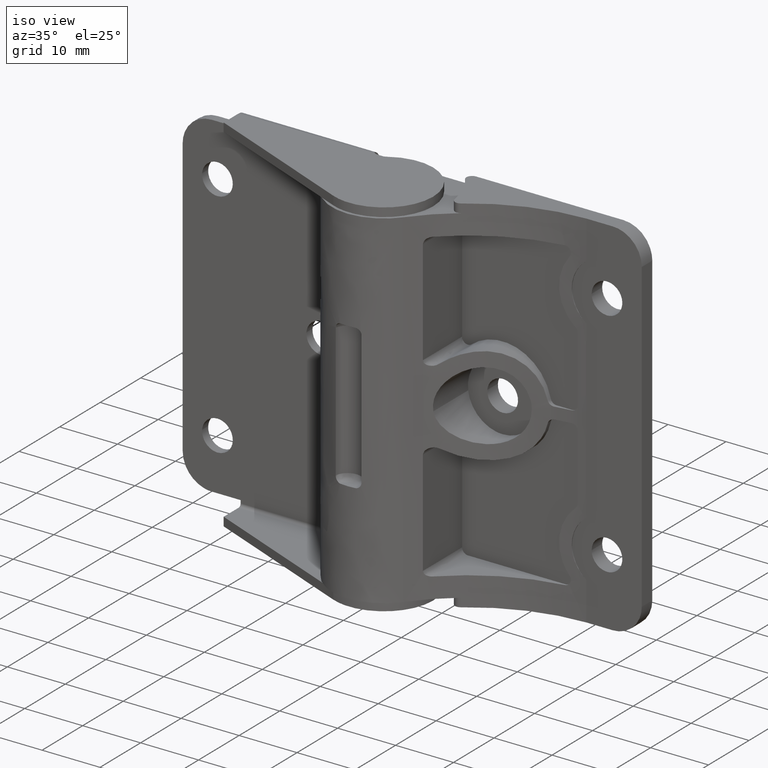
[diagram: clean part render]
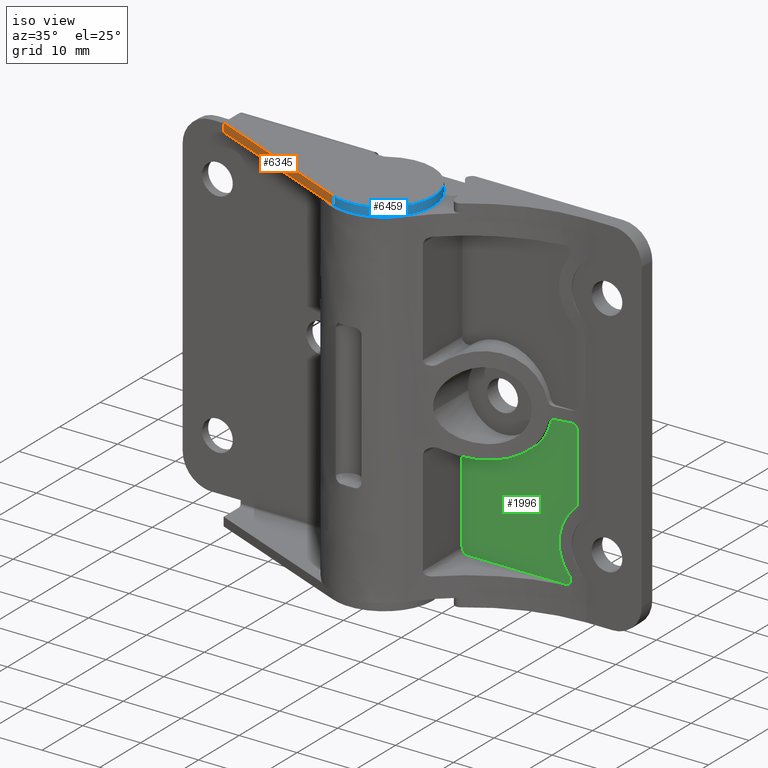
[diagram: same view with three faces highlighted in distinct colors, each labeled with its STEP entity id]
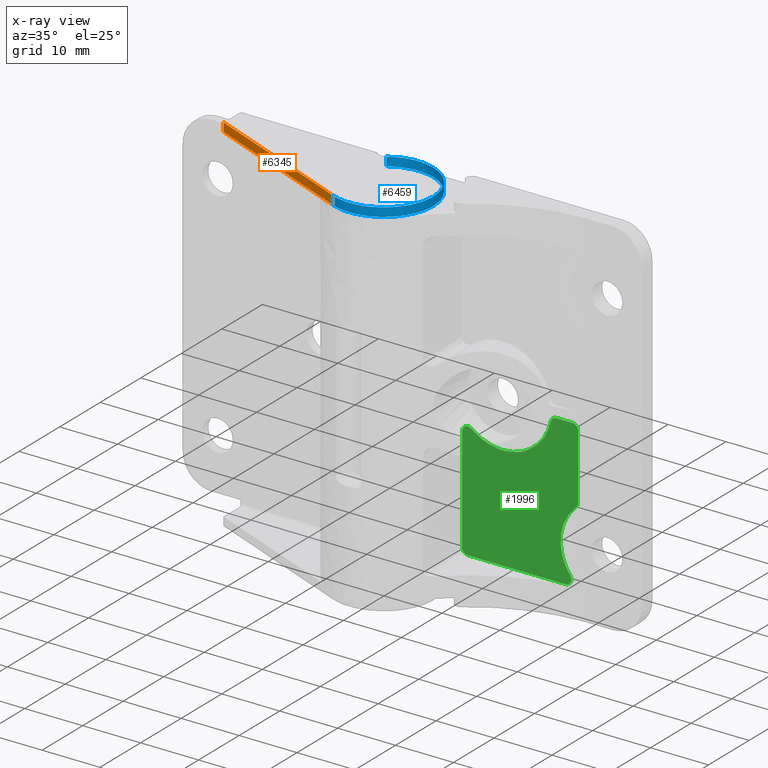
[diagram: x-ray of the same camera — body ghosted, the three highlighted faces saturated]
A machine part, iso view with three faces highlighted in distinct colors.
The next image is the same camera in x-ray (body ghosted, the three faces saturated) — at least one of them is partly hidden behind the body in this view.
Their STEP definitions:

[orange] entity #6345 — the highlighted face is a freeform B-spline surface patch.
#5631=CARTESIAN_POINT('',(-30.000007999999951,3.321986342408830,61.500000000000000));
#5632=VERTEX_POINT('',#5631);
#5685=CARTESIAN_POINT('',(-3.276808767599735,-7.842992050268921,61.500000000000000));
#5686=VERTEX_POINT('',#5685);
#5704=CARTESIAN_POINT('',(-30.000007999999951,3.321986342408830,61.500000000000000));
#5705=CARTESIAN_POINT('',(-3.276808767599735,-7.842992050268921,61.500000000000000));
#5706=QUASI_UNIFORM_CURVE('',1,(#5704,#5705),.UNSPECIFIED.,.F.,.U.);
#5707=EDGE_CURVE('',#5632,#5686,#5706,.T.);
#6127=CARTESIAN_POINT('',(-30.000007999999902,3.321987000000000,63.0));
#6128=VERTEX_POINT('',#6127);
#6134=CARTESIAN_POINT('',(-3.276809999999900,-7.842995000000000,63.0));
#6135=VERTEX_POINT('',#6134);
#6136=CARTESIAN_POINT('',(-30.000007999999902,3.321987000000000,63.0));
#6137=CARTESIAN_POINT('',(-3.276809999999900,-7.842995000000000,63.0));
#6138=QUASI_UNIFORM_CURVE('',1,(#6136,#6137),.UNSPECIFIED.,.F.,.U.);
#6139=EDGE_CURVE('',#6128,#6135,#6138,.T.);
#6326=CARTESIAN_POINT('',(-31.334831683042090,3.879677136623206,61.425075002907292));
#6327=CARTESIAN_POINT('',(-1.941985595173021,-8.400686095776997,61.425075002907292));
#6328=CARTESIAN_POINT('',(-31.334831683042090,3.879677136623206,63.074925037325848));
#6329=CARTESIAN_POINT('',(-1.941985595173021,-8.400686095776997,63.074925037325848));
#6330=B_SPLINE_SURFACE_WITH_KNOTS('',1,1,((#6326,#6328),(#6327,#6329)),.UNSPECIFIED.,.F.,.F.,.U.,(2,2),(2,2),(0.0,31.855089424844611),(0.041708334948495,0.958291687403247),.UNSPECIFIED.);
#6331=CARTESIAN_POINT('',(-30.000007999999951,3.321986342408830,61.500000000000000));
#6332=CARTESIAN_POINT('',(-30.000007999999902,3.321987000000000,63.0));
#6333=QUASI_UNIFORM_CURVE('',1,(#6331,#6332),.UNSPECIFIED.,.F.,.U.);
#6334=EDGE_CURVE('',#5632,#6128,#6333,.T.);
#6335=ORIENTED_EDGE('',*,*,#6334,.F.);
#6336=ORIENTED_EDGE('',*,*,#5707,.T.);
#6337=CARTESIAN_POINT('',(-3.276808767599735,-7.842992050268921,61.500000000000000));
#6338=CARTESIAN_POINT('',(-3.276809999999900,-7.842995000000000,63.0));
#6339=QUASI_UNIFORM_CURVE('',1,(#6337,#6338),.UNSPECIFIED.,.F.,.U.);
#6340=EDGE_CURVE('',#5686,#6135,#6339,.T.);
#6341=ORIENTED_EDGE('',*,*,#6340,.T.);
#6342=ORIENTED_EDGE('',*,*,#6139,.F.);
#6343=EDGE_LOOP('',(#6335,#6336,#6341,#6342));
#6344=FACE_OUTER_BOUND('',#6343,.T.);
#6345=ADVANCED_FACE('',(#6344),#6330,.T.);

[blue] entity #6459 — the highlighted face is a freeform B-spline surface patch.
#5670=CARTESIAN_POINT('',(-4.584174785330380,7.157895387819600,61.500000000000000));
#5671=VERTEX_POINT('',#5670);
#5685=CARTESIAN_POINT('',(-3.276808767599735,-7.842992050268921,61.500000000000000));
#5686=VERTEX_POINT('',#5685);
#5687=CARTESIAN_POINT('',(-4.584174785330380,7.157895387819600,61.500000000000000));
#5688=CARTESIAN_POINT('',(1.257546823962556,10.899146803451339,61.500000000000007));
#5689=CARTESIAN_POINT('',(6.093780912361157,5.925863281884101,61.500000000000000));
#5690=CARTESIAN_POINT('',(10.930015000759759,0.952579760316862,61.500000000000007));
#5691=CARTESIAN_POINT('',(7.027029076216087,-4.782347324730324,61.500000000000000));
#5692=CARTESIAN_POINT('',(3.124043151672413,-10.517274409777514,61.500000000000007));
#5693=CARTESIAN_POINT('',(-3.276808767599735,-7.842992050268921,61.500000000000000));
#5701=(BOUNDED_CURVE()B_SPLINE_CURVE(2,(#5687,#5688,#5689,#5690,#5691,#5692,#5693),.UNSPECIFIED.,.F.,.U.)B_SPLINE_CURVE_WITH_KNOTS((3,2,2,3),(0.0,0.333333333333333,0.666666666666667,1.0),.UNSPECIFIED.)CURVE()GEOMETRIC_REPRESENTATION_ITEM()RATIONAL_B_SPLINE_CURVE((1.0,0.774738204003551,1.0,0.774738204003551,1.0,0.774738204003551,1.0))REPRESENTATION_ITEM(''));
#5702=EDGE_CURVE('',#5671,#5686,#5701,.T.);
#6134=CARTESIAN_POINT('',(-3.276809999999900,-7.842995000000000,63.0));
#6135=VERTEX_POINT('',#6134);
#6141=CARTESIAN_POINT('',(-4.584170824690100,7.157889203533410,63.0));
#6142=VERTEX_POINT('',#6141);
#6143=CARTESIAN_POINT('',(-4.584170824690100,7.157889203533410,63.0));
#6144=CARTESIAN_POINT('',(1.257551895074683,10.899139927492818,63.000000000000007));
#6145=CARTESIAN_POINT('',(6.093784129977254,5.925857560400513,63.0));
#6146=CARTESIAN_POINT('',(10.930016364879824,0.952575193308209,63.000000000000007));
#6147=CARTESIAN_POINT('',(7.027028586840112,-4.782350737264031,63.0));
#6148=CARTESIAN_POINT('',(3.124040808800400,-10.517276667836272,63.000000000000007));
#6149=CARTESIAN_POINT('',(-3.276809999999900,-7.842995000000000,63.0));
#6157=(BOUNDED_CURVE()B_SPLINE_CURVE(2,(#6143,#6144,#6145,#6146,#6147,#6148,#6149),.UNSPECIFIED.,.F.,.U.)B_SPLINE_CURVE_WITH_KNOTS((3,2,2,3),(0.0,0.333333333333333,0.666666666666667,1.0),.UNSPECIFIED.)CURVE()GEOMETRIC_REPRESENTATION_ITEM()RATIONAL_B_SPLINE_CURVE((1.0,0.774738204003550,1.0,0.774738204003550,1.0,0.774738204003550,1.0))REPRESENTATION_ITEM(''));
#6158=EDGE_CURVE('',#6142,#6135,#6157,.T.);
#6257=CARTESIAN_POINT('',(-4.584174785330380,7.157895387819600,61.500000000000000));
#6258=CARTESIAN_POINT('',(-4.584170824690100,7.157889203533410,63.0));
#6259=QUASI_UNIFORM_CURVE('',1,(#6257,#6258),.UNSPECIFIED.,.F.,.U.);
#6260=EDGE_CURVE('',#5671,#6142,#6259,.T.);
#6337=CARTESIAN_POINT('',(-3.276808767599735,-7.842992050268921,61.500000000000000));
#6338=CARTESIAN_POINT('',(-3.276809999999900,-7.842995000000000,63.0));
#6339=QUASI_UNIFORM_CURVE('',1,(#6337,#6338),.UNSPECIFIED.,.F.,.U.);
#6340=EDGE_CURVE('',#5686,#6135,#6339,.T.);
#6431=CARTESIAN_POINT('',(-4.892030451721147,6.951117756119007,61.462499999999991));
#6432=CARTESIAN_POINT('',(-4.892030451721147,6.951117756119007,63.038437500000008));
#6433=CARTESIAN_POINT('',(0.975190932765316,11.080327861160116,61.462499999999999));
#6434=CARTESIAN_POINT('',(0.975190932765316,11.080327861160116,63.038437500000015));
#6435=CARTESIAN_POINT('',(6.030971439881581,5.989773242062895,61.462499999999991));
#6436=CARTESIAN_POINT('',(6.030971439881581,5.989773242062895,63.038437500000008));
#6437=CARTESIAN_POINT('',(11.086751946997845,0.899218622965672,61.462499999999999));
#6438=CARTESIAN_POINT('',(11.086751946997845,0.899218622965672,63.038437500000015));
#6439=CARTESIAN_POINT('',(6.917422350242102,-4.939561521873269,61.462499999999991));
#6440=CARTESIAN_POINT('',(6.917422350242102,-4.939561521873269,63.038437500000008));
#6441=CARTESIAN_POINT('',(2.748092753486360,-10.778341666712210,61.462499999999999));
#6442=CARTESIAN_POINT('',(2.748092753486360,-10.778341666712210,63.038437500000015));
#6443=CARTESIAN_POINT('',(-3.707881150615803,-7.648635000632987,61.462499999999991));
#6444=CARTESIAN_POINT('',(-3.707881150615803,-7.648635000632987,63.038437500000008));
#6452=(BOUNDED_SURFACE()B_SPLINE_SURFACE(1,2,((#6431,#6433,#6435,#6437,#6439,#6441,#6443),(#6432,#6434,#6436,#6438,#6440,#6442,#6444)),.UNSPECIFIED.,.F.,.F.,.U.)B_SPLINE_SURFACE_WITH_KNOTS((2,2),(3,2,2,3),(0.0,1.0),(0.0,12.431019649272409,24.862039298544818,37.293058947817222),.UNSPECIFIED.)GEOMETRIC_REPRESENTATION_ITEM()RATIONAL_B_SPLINE_SURFACE(((1.0,0.764171411415913,1.0,0.764171411415913,1.0,0.764171411415913,1.0),(1.0,0.764171411415913,1.0,0.764171411415913,1.0,0.764171411415913,1.0)))REPRESENTATION_ITEM('')SURFACE());
#6453=ORIENTED_EDGE('',*,*,#5702,.F.);
#6454=ORIENTED_EDGE('',*,*,#6260,.T.);
#6455=ORIENTED_EDGE('',*,*,#6158,.T.);
#6456=ORIENTED_EDGE('',*,*,#6340,.F.);
#6457=EDGE_LOOP('',(#6453,#6454,#6455,#6456));
#6458=FACE_OUTER_BOUND('',#6457,.T.);
#6459=ADVANCED_FACE('',(#6458),#6452,.T.);

[green] entity #1996 — the highlighted face is a freeform B-spline surface patch.
#1831=CARTESIAN_POINT('',(8.001000038764090,6.400002000000000,31.773724950576060));
#1832=CARTESIAN_POINT('',(29.999000497677919,6.400002000000000,31.773724950576060));
#1833=CARTESIAN_POINT('',(8.001000038764090,6.400002000000000,3.726274365460567));
#1834=CARTESIAN_POINT('',(29.999000497677919,6.400002000000000,3.726274365460567));
#1835=B_SPLINE_SURFACE_WITH_KNOTS('',1,1,((#1831,#1833),(#1832,#1834)),.UNSPECIFIED.,.F.,.F.,.U.,(2,2),(2,2),(0.0,21.998000458913829),(0.0,28.047450585115492),.UNSPECIFIED.);
#1836=CARTESIAN_POINT('',(9.000000000000199,6.400002000000000,24.134535912733451));
#1837=VERTEX_POINT('',#1836);
#1838=CARTESIAN_POINT('',(9.000000000000210,6.400002000000000,6.000000157079550));
#1839=VERTEX_POINT('',#1838);
#1840=CARTESIAN_POINT('',(9.000000000000199,6.400002000000000,24.134535912733451));
#1841=CARTESIAN_POINT('',(9.000000000000210,6.400002000000000,6.000000157079550));
#1842=QUASI_UNIFORM_CURVE('',1,(#1840,#1841),.UNSPECIFIED.,.F.,.U.);
#1843=EDGE_CURVE('',#1837,#1839,#1842,.T.);
#1844=ORIENTED_EDGE('',*,*,#1843,.T.);
#1845=CARTESIAN_POINT('',(10.000000017453500,6.400002000000000,4.999999999999920));
#1846=VERTEX_POINT('',#1845);
#1847=CARTESIAN_POINT('',(9.000000000000213,6.400002000000000,6.000000157079550));
#1848=CARTESIAN_POINT('',(8.999999934935691,6.400002000000001,5.585786543586948));
#1849=CARTESIAN_POINT('',(9.292893169448293,6.400002000000000,5.292893268178737));
#1850=CARTESIAN_POINT('',(9.585786403960892,6.400002000000001,4.999999992770527));
#1851=CARTESIAN_POINT('',(10.000000017453500,6.400002000000000,4.999999999999920));
#1859=(BOUNDED_CURVE()B_SPLINE_CURVE(2,(#1847,#1848,#1849,#1850,#1851),.UNSPECIFIED.,.F.,.U.)B_SPLINE_CURVE_WITH_KNOTS((3,2,3),(0.0,0.500000000000000,1.0),.UNSPECIFIED.)CURVE()GEOMETRIC_REPRESENTATION_ITEM()RATIONAL_B_SPLINE_CURVE((1.0,0.923879515813571,1.0,0.923879515813571,1.0))REPRESENTATION_ITEM(''));
#1860=EDGE_CURVE('',#1839,#1846,#1859,.T.);
#1861=ORIENTED_EDGE('',*,*,#1860,.T.);
#1862=CARTESIAN_POINT('',(26.876099000000199,6.400002000000000,5.0));
#1863=VERTEX_POINT('',#1862);
#1864=CARTESIAN_POINT('',(10.000000017453500,6.400002000000000,4.999999999999920));
#1865=CARTESIAN_POINT('',(26.876099000000199,6.400002000000000,5.0));
#1866=QUASI_UNIFORM_CURVE('',1,(#1864,#1865),.UNSPECIFIED.,.F.,.U.);
#1867=EDGE_CURVE('',#1846,#1863,#1866,.T.);
#1868=ORIENTED_EDGE('',*,*,#1867,.T.);
#1869=CARTESIAN_POINT('',(27.667643824551700,6.400002000000000,6.611111111603821));
#1870=VERTEX_POINT('',#1869);
#1871=CARTESIAN_POINT('',(26.876099000000199,6.400002000000000,5.0));
#1872=CARTESIAN_POINT('',(27.498967344838025,6.400002000000000,4.999999999999920));
#1873=CARTESIAN_POINT('',(27.773626467993211,6.400002000000000,5.559041448435204));
#1874=CARTESIAN_POINT('',(28.048285591148410,6.400002000000000,6.118082896870489));
#1875=CARTESIAN_POINT('',(27.667643824551689,6.400002000000000,6.611111111603815));
#1883=(BOUNDED_CURVE()B_SPLINE_CURVE(2,(#1871,#1872,#1873,#1874,#1875),.UNSPECIFIED.,.F.,.U.)B_SPLINE_CURVE_WITH_KNOTS((3,2,3),(0.0,0.500000000000000,1.0),.UNSPECIFIED.)CURVE()GEOMETRIC_REPRESENTATION_ITEM()RATIONAL_B_SPLINE_CURVE((1.0,0.848810506404320,1.0,0.848810506404320,1.0))REPRESENTATION_ITEM(''));
#1884=EDGE_CURVE('',#1863,#1870,#1883,.T.);
#1885=ORIENTED_EDGE('',*,*,#1884,.T.);
#1886=CARTESIAN_POINT('',(28.666666551749099,6.400002000000000,17.462847837213801));
#1887=VERTEX_POINT('',#1886);
#1888=CARTESIAN_POINT('',(28.666666551749099,6.400002000000000,17.462847837213801));
#1889=CARTESIAN_POINT('',(23.119866777462242,6.400002000000000,12.501639010695177));
#1890=CARTESIAN_POINT('',(27.667643824551700,6.400002000000000,6.611111111603821));
#1898=(BOUNDED_CURVE()B_SPLINE_CURVE(2,(#1888,#1889,#1890),.UNSPECIFIED.,.F.,.U.)CURVE()GEOMETRIC_REPRESENTATION_ITEM()QUASI_UNIFORM_CURVE()RATIONAL_B_SPLINE_CURVE((1.0,0.732188860810954,1.0))REPRESENTATION_ITEM(''));
#1899=EDGE_CURVE('',#1887,#1870,#1898,.T.);
#1900=ORIENTED_EDGE('',*,*,#1899,.F.);
#1901=CARTESIAN_POINT('',(29.0,6.400002000000000,18.208206000000001));
#1902=VERTEX_POINT('',#1901);
#1903=CARTESIAN_POINT('',(28.666666551749099,6.400002000000000,17.462847837213801));
#1904=CARTESIAN_POINT('',(29.000000513674234,6.400002000000000,17.760990910686914));
#1905=CARTESIAN_POINT('',(29.0,6.400002000000000,18.208206000000001));
#1913=(BOUNDED_CURVE()B_SPLINE_CURVE(2,(#1903,#1904,#1905),.UNSPECIFIED.,.F.,.U.)CURVE()GEOMETRIC_REPRESENTATION_ITEM()QUASI_UNIFORM_CURVE()RATIONAL_B_SPLINE_CURVE((1.0,0.912870616352786,1.0))REPRESENTATION_ITEM(''));
#1914=EDGE_CURVE('',#1887,#1902,#1913,.T.);
#1915=ORIENTED_EDGE('',*,*,#1914,.T.);
#1916=CARTESIAN_POINT('',(29.0,6.400002000000000,29.500000000000000));
#1917=VERTEX_POINT('',#1916);
#1918=CARTESIAN_POINT('',(29.0,6.400002000000000,18.208206000000001));
#1919=CARTESIAN_POINT('',(29.0,6.400002000000000,29.500000000000000));
#1920=QUASI_UNIFORM_CURVE('',1,(#1918,#1919),.UNSPECIFIED.,.F.,.U.);
#1921=EDGE_CURVE('',#1902,#1917,#1920,.T.);
#1922=ORIENTED_EDGE('',*,*,#1921,.T.);
#1923=CARTESIAN_POINT('',(27.999999947640301,6.400002000000000,30.500000000000000));
#1924=VERTEX_POINT('',#1923);
#1925=CARTESIAN_POINT('',(29.0,6.400002000000000,29.500000000000000));
#1926=CARTESIAN_POINT('',(28.999999999999996,6.400002000000000,29.914213577708896));
#1927=CARTESIAN_POINT('',(28.707106762674599,6.400002000000000,30.207106799698501));
#1928=CARTESIAN_POINT('',(28.414213525349194,6.400002000000000,30.500000021688091));
#1929=CARTESIAN_POINT('',(27.999999947640301,6.400002000000000,30.500000000000000));
#1937=(BOUNDED_CURVE()B_SPLINE_CURVE(2,(#1925,#1926,#1927,#1928,#1929),.UNSPECIFIED.,.F.,.U.)B_SPLINE_CURVE_WITH_KNOTS((3,2,3),(0.0,0.500000000000000,1.0),.UNSPECIFIED.)CURVE()GEOMETRIC_REPRESENTATION_ITEM()RATIONAL_B_SPLINE_CURVE((1.0,0.923879527501989,1.0,0.923879527501989,1.0))REPRESENTATION_ITEM(''));
#1938=EDGE_CURVE('',#1917,#1924,#1937,.T.);
#1939=ORIENTED_EDGE('',*,*,#1938,.T.);
#1940=CARTESIAN_POINT('',(25.287079000000201,6.400002000000000,30.500000000000000));
#1941=VERTEX_POINT('',#1940);
#1942=CARTESIAN_POINT('',(27.999999947640301,6.400002000000000,30.500000000000000));
#1943=CARTESIAN_POINT('',(25.287079000000201,6.400002000000000,30.500000000000000));
#1944=QUASI_UNIFORM_CURVE('',1,(#1942,#1943),.UNSPECIFIED.,.F.,.U.);
#1945=EDGE_CURVE('',#1924,#1941,#1944,.T.);
#1946=ORIENTED_EDGE('',*,*,#1945,.T.);
#1947=CARTESIAN_POINT('',(24.309490804023199,6.400002000000000,29.710526290724999));
#1948=VERTEX_POINT('',#1947);
#1949=CARTESIAN_POINT('',(25.287079000000201,6.400002000000000,30.500000000000000));
#1950=CARTESIAN_POINT('',(24.479506125732833,6.400002000000002,30.500000000000000));
#1951=CARTESIAN_POINT('',(24.309490804023199,6.400002000000000,29.710526290724999));
#1959=(BOUNDED_CURVE()B_SPLINE_CURVE(2,(#1949,#1950,#1951),.UNSPECIFIED.,.F.,.U.)CURVE()GEOMETRIC_REPRESENTATION_ITEM()QUASI_UNIFORM_CURVE()RATIONAL_B_SPLINE_CURVE((1.0,0.777986597161224,1.0))REPRESENTATION_ITEM(''));
#1960=EDGE_CURVE('',#1941,#1948,#1959,.T.);
#1961=ORIENTED_EDGE('',*,*,#1960,.T.);
#1962=CARTESIAN_POINT('',(10.631579604835560,6.400002000000000,24.909851104809398));
#1963=VERTEX_POINT('',#1962);
#1964=CARTESIAN_POINT('',(10.631579604835560,6.400002000000000,24.909851104809398));
#1965=CARTESIAN_POINT('',(14.322748635306004,6.400002000000001,21.902976279146550));
#1966=CARTESIAN_POINT('',(18.814974009644850,6.400002000000000,23.479658169390859));
#1967=CARTESIAN_POINT('',(23.307199383983686,6.400002000000001,25.056340059635154));
#1968=CARTESIAN_POINT('',(24.309490804023199,6.400002000000000,29.710526290724999));
#1976=(BOUNDED_CURVE()B_SPLINE_CURVE(2,(#1964,#1965,#1966,#1967,#1968),.UNSPECIFIED.,.F.,.U.)B_SPLINE_CURVE_WITH_KNOTS((3,2,3),(0.0,0.500000000000000,1.0),.UNSPECIFIED.)CURVE()GEOMETRIC_REPRESENTATION_ITEM()RATIONAL_B_SPLINE_CURVE((1.0,0.872467234362024,1.0,0.872467234362024,1.0))REPRESENTATION_ITEM(''));
#1977=EDGE_CURVE('',#1963,#1948,#1976,.T.);
#1978=ORIENTED_EDGE('',*,*,#1977,.F.);
#1979=CARTESIAN_POINT('',(10.631579604835560,6.400002000000000,24.909851104809398));
#1980=CARTESIAN_POINT('',(10.141605039166535,6.400001999999999,25.308988780556646));
#1981=CARTESIAN_POINT('',(9.570802641584290,6.400002000000000,25.037747482119631));
#1982=CARTESIAN_POINT('',(9.000000244002047,6.400001999999999,24.766506183682623));
#1983=CARTESIAN_POINT('',(9.000000000000199,6.400002000000000,24.134535912733451));
#1991=(BOUNDED_CURVE()B_SPLINE_CURVE(2,(#1979,#1980,#1981,#1982,#1983),.UNSPECIFIED.,.F.,.U.)B_SPLINE_CURVE_WITH_KNOTS((3,2,3),(0.0,0.500000000000000,1.0),.UNSPECIFIED.)CURVE()GEOMETRIC_REPRESENTATION_ITEM()RATIONAL_B_SPLINE_CURVE((1.0,0.845339658287883,1.0,0.845339658287883,1.0))REPRESENTATION_ITEM(''));
#1992=EDGE_CURVE('',#1963,#1837,#1991,.T.);
#1993=ORIENTED_EDGE('',*,*,#1992,.T.);
#1994=EDGE_LOOP('',(#1844,#1861,#1868,#1885,#1900,#1915,#1922,#1939,#1946,#1961,#1978,#1993));
#1995=FACE_OUTER_BOUND('',#1994,.T.);
#1996=ADVANCED_FACE('',(#1995),#1835,.F.);